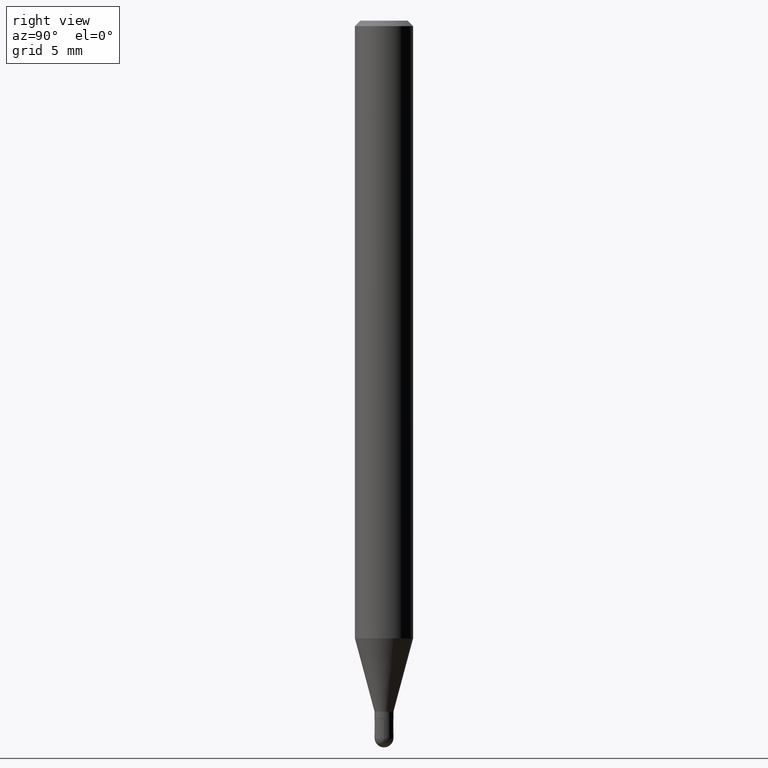
[diagram: clean part render]
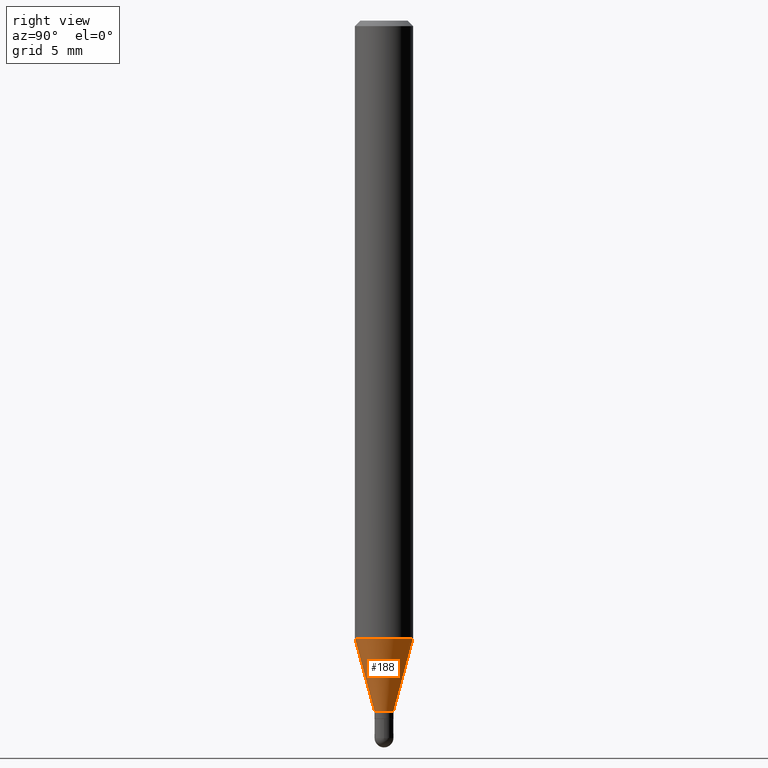
[diagram: same view with one face highlighted and labeled with its STEP entity id]
A machine part, right view. The second image highlights one B-rep face of the part: STEP entity #188.
In plain terms, the highlighted conical surface has half-angle 15 deg.
Its self-contained STEP definition (entity closure, byte-faithful):
#4 = ORIENTED_EDGE ( 'NONE', *, *, #506, .T. ) ;
#16 = VECTOR ( 'NONE', #328, 39.37007874015748143 ) ;
#24 = EDGE_CURVE ( 'NONE', #197, #212, #233, .T. ) ;
#43 = EDGE_CURVE ( 'NONE', #489, #212, #510, .T. ) ;
#49 = CARTESIAN_POINT ( 'NONE',  ( 1.818989403546307939E-16, 0.02559999999999338152, -1.871499999999999719 ) ) ;
#92 = DIRECTION ( 'NONE',  ( -6.982962677686265922E-15, -1.000000000000000000, 0.000000000000000000 ) ) ;
#99 = EDGE_CURVE ( 'NONE', #240, #489, #388, .T. ) ;
#135 = DIRECTION ( 'NONE',  ( -2.445483200868437747E-29, 3.491460724837364104E-15, 1.000000000000000000 ) ) ;
#168 = CARTESIAN_POINT ( 'NONE',  ( 4.576721810425280278E-29, -6.534268746533124944E-15, -1.871499999999999719 ) ) ;
#177 = AXIS2_PLACEMENT_3D ( 'NONE', #168, #386, #490 ) ;
#183 = CARTESIAN_POINT ( 'NONE',  ( 5.595524044111194280E-16, 0.07874999999999414413, -1.673141499577714519 ) ) ;
#188 = ADVANCED_FACE ( 'NONE', ( #321 ), #395, .T. ) ;
#197 = VERTEX_POINT ( 'NONE', #504 ) ;
#198 = AXIS2_PLACEMENT_3D ( 'NONE', #217, #135, #384 ) ;
#212 = VERTEX_POINT ( 'NONE', #183 ) ;
#217 = CARTESIAN_POINT ( 'NONE',  ( 4.091639429893126858E-29, -5.841707832871080184E-15, -1.673141499577714297 ) ) ;
#233 = LINE ( 'NONE', #49, #16 ) ;
#234 = EDGE_LOOP ( 'NONE', ( #4, #475, #291, #415 ) ) ;
#240 = VERTEX_POINT ( 'NONE', #373 ) ;
#264 = CIRCLE ( 'NONE', #177, 0.02559999999999991796 ) ;
#288 = DIRECTION ( 'NONE',  ( -2.445483200868437747E-29, 3.491460724837364104E-15, 1.000000000000000000 ) ) ;
#291 = ORIENTED_EDGE ( 'NONE', *, *, #43, .F. ) ;
#302 = DIRECTION ( 'NONE',  ( -1.807323732225330139E-15, -0.2588190451025181860, 0.9659258262890689783 ) ) ;
#321 = FACE_OUTER_BOUND ( 'NONE', #234, .T. ) ;
#328 = DIRECTION ( 'NONE',  ( 1.839019923739600315E-15, 0.2588190451025249583, 0.9659258262890670910 ) ) ;
#345 = CARTESIAN_POINT ( 'NONE',  ( -1.787638445487220540E-16, -0.02560000000000645440, -1.871499999999999719 ) ) ;
#373 = CARTESIAN_POINT ( 'NONE',  ( -1.787638445487220540E-16, -0.02560000000000645440, -1.871499999999999719 ) ) ;
#375 = CARTESIAN_POINT ( 'NONE',  ( -5.499083108677527193E-16, -0.07875000000000585698, -1.673141499577714075 ) ) ;
#384 = DIRECTION ( 'NONE',  ( -6.982962677686264344E-15, -1.000000000000000000, 3.469013325287953293E-15 ) ) ;
#386 = DIRECTION ( 'NONE',  ( -2.445483200868437747E-29, 3.491460724837364104E-15, 1.000000000000000000 ) ) ;
#388 = LINE ( 'NONE', #345, #495 ) ;
#395 = CONICAL_SURFACE ( 'NONE', #459, 0.02559999999999991796, 0.2617993877991502960 ) ;
#415 = ORIENTED_EDGE ( 'NONE', *, *, #99, .F. ) ;
#459 = AXIS2_PLACEMENT_3D ( 'NONE', #488, #288, #92 ) ;
#475 = ORIENTED_EDGE ( 'NONE', *, *, #24, .T. ) ;
#488 = CARTESIAN_POINT ( 'NONE',  ( 4.576721810425280278E-29, -6.534268746533124944E-15, -1.871499999999999719 ) ) ;
#489 = VERTEX_POINT ( 'NONE', #375 ) ;
#490 = DIRECTION ( 'NONE',  ( -6.982962677686265922E-15, -1.000000000000000000, 0.000000000000000000 ) ) ;
#495 = VECTOR ( 'NONE', #302, 39.37007874015748143 ) ;
#504 = CARTESIAN_POINT ( 'NONE',  ( 3.707256723828752589E-16, 0.02559999999999338152, -1.871499999999999719 ) ) ;
#506 = EDGE_CURVE ( 'NONE', #240, #197, #264, .T. ) ;
#510 = CIRCLE ( 'NONE', #198, 0.07875000000000000056 ) ;